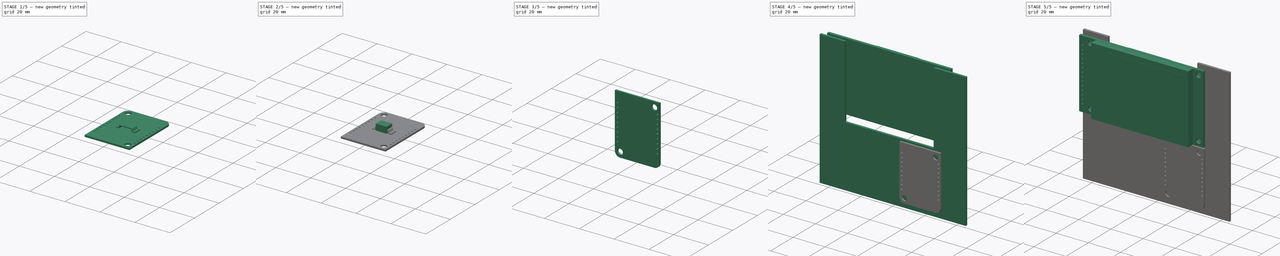
[diagram: build sequence overview — one tinted view per stage of 5, left to right]
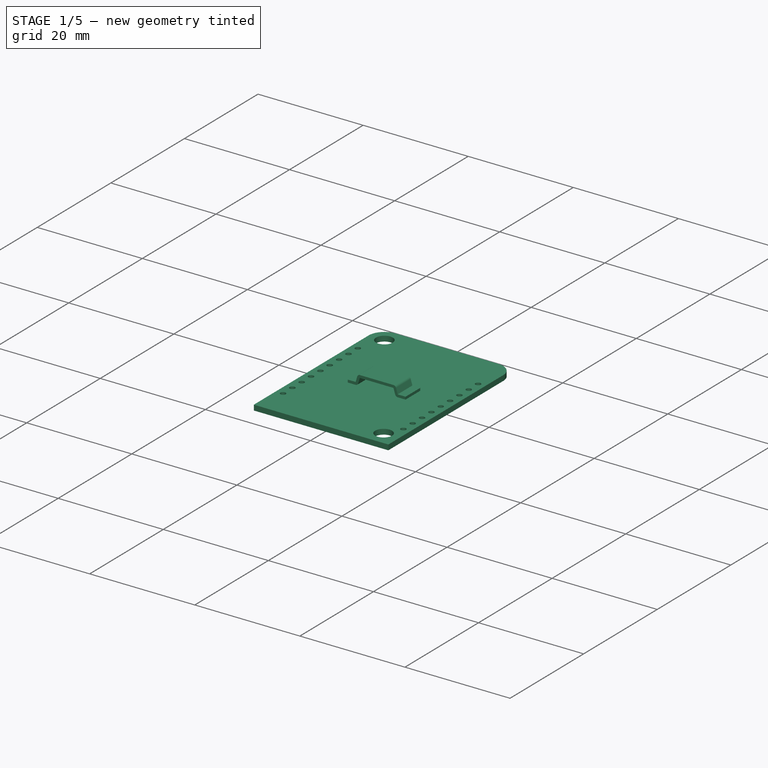
[diagram: stage 1 of 5 — iso view after this stage's code; geometry added in this stage tinted green]
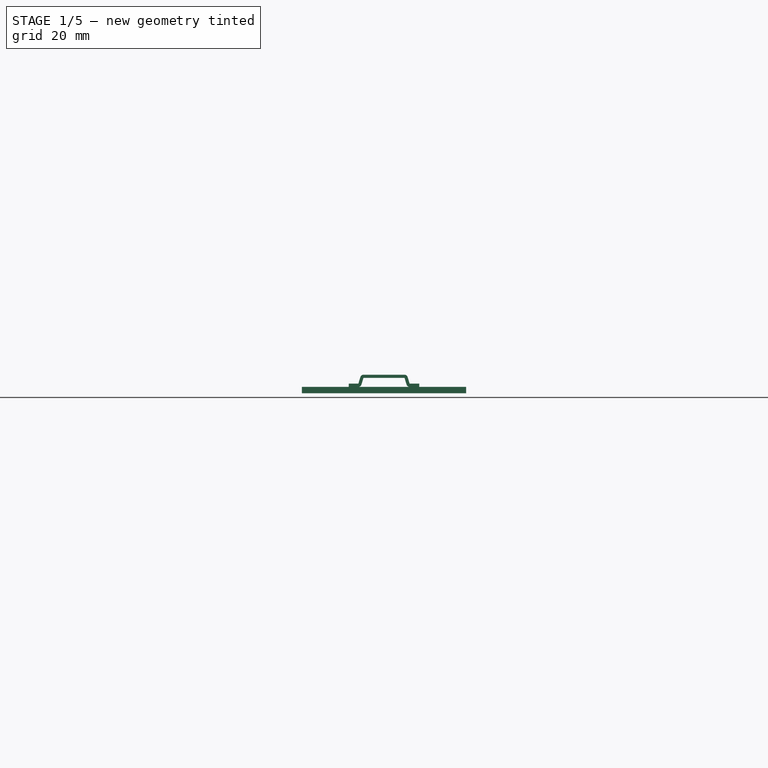
[diagram: stage 1 of 5 — front view after this stage's code; geometry added in this stage tinted green]
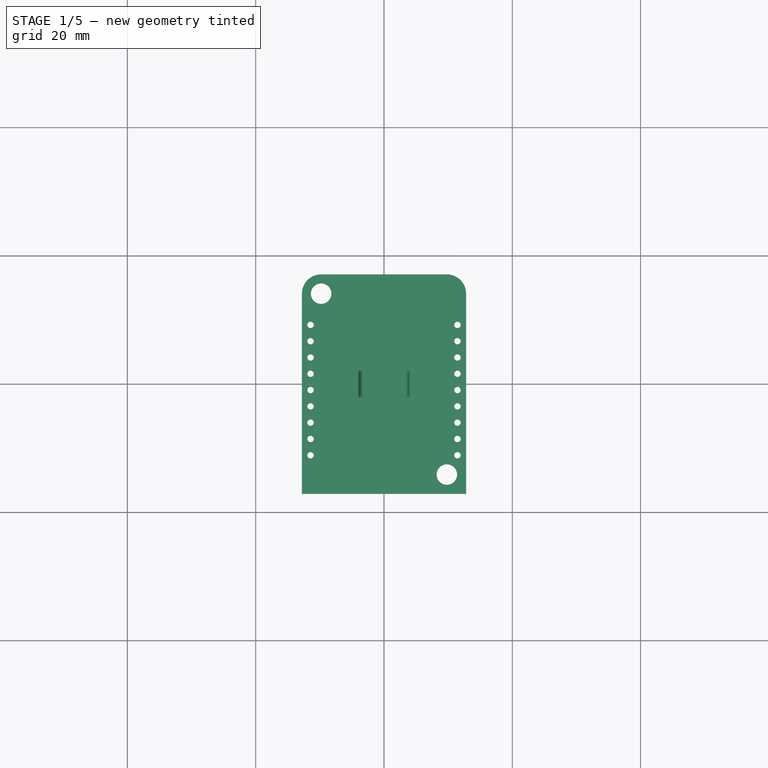
[diagram: stage 1 of 5 — top view after this stage's code; geometry added in this stage tinted green]
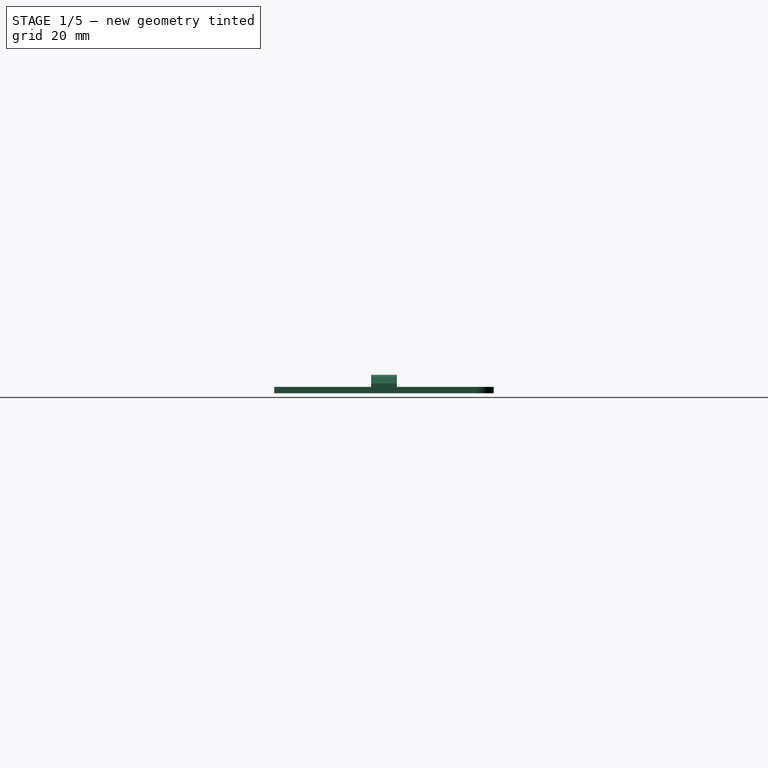
[diagram: stage 1 of 5 — right view after this stage's code; geometry added in this stage tinted green]
FCSTD DOCUMENT  (FreeCAD 0.20R29410 (Git))
Label: RoomThermostat with PCB and rotary encoder (concept)
License: All rights reserved
LicenseURL: http://en.wikipedia.org/wiki/All_rights_reserved
objects: Sketcher::SketchObject×18, PartDesign::Pad×11, PartDesign::Body×10, Part::Feature×6, PartDesign::Mirrored×5, PartDesign::Pocket×4, PartDesign::LinearPattern×2, Part::Compound×2, App::Part×1, PartDesign::MultiTransform×1
note: 74 computed .brp shape members not serialized (recipe doc carries the construction recipe); baked Part::Feature solids carry a one-line shape summary decoded from their .brp

FEATURE [PartDesign::Body] Body004
  Group = -> [Sketch011,Pad005]
  Origin = -> Origin006
  Tip = -> Pad005
FEATURE [Part::Feature] Part__Feature007  label="MH-ET_LIVE_MiniKit"
  Placement = pos=(-15.8,-5.5,-42) rot=(0,0,1;0rad)
  shape: bbox 31.02 x 99.68 x 39.44 mm, 5494 faces, 23 solids (baked)
FEATURE [Sketcher::SketchObject] Sketch012  label="Sketch"
  FullyConstrained = true
  MapMode = 5
  Support = -> [XY_Plane007]
  sketch-geometry (13):
    g0: LineSegment StartX=9.8 StartY=17.1 StartZ=0 EndX=-9.8 EndY=17.1 EndZ=0
    g1: LineSegment StartX=-12.8 StartY=14.1 StartZ=0 EndX=-12.8 EndY=-17.1 EndZ=0
    g2: LineSegment StartX=-12.8 StartY=-17.1 StartZ=0 EndX=12.8 EndY=-17.1 EndZ=0
    g3: LineSegment StartX=12.8 StartY=-17.1 StartZ=0 EndX=12.8 EndY=14.1 EndZ=0
    g4: GeomPoint X=12.8 Y=17.1 Z=0
    g5: ArcOfCircle CenterX=9.8 CenterY=14.1 CenterZ=0 NormalX=0 NormalY=0 NormalZ=1 AngleXU=0 Radius=3 StartAngle=0 EndAngle=1.5708
    g6: ArcOfCircle CenterX=-9.8 CenterY=14.1 CenterZ=0 NormalX=0 NormalY=0 NormalZ=1 AngleXU=0 Radius=3 StartAngle=1.5708 EndAngle=3.14159
    g7: Circle CenterX=-9.8 CenterY=14.1 CenterZ=0 NormalX=0 NormalY=0 NormalZ=1 AngleXU=0 Radius=1.6
    g8: Circle CenterX=9.8 CenterY=-14.1 CenterZ=0 NormalX=0 NormalY=0 NormalZ=1 AngleXU=0 Radius=1.6
    g9: LineSegment StartX=-9.8 StartY=14.1 StartZ=0 EndX=9.8 EndY=14.1 EndZ=0
    g10: LineSegment StartX=9.8 StartY=14.1 StartZ=0 EndX=9.8 EndY=-14.1 EndZ=0
    g11: LineSegment StartX=9.8 StartY=-14.1 StartZ=0 EndX=-9.8 EndY=-14.1 EndZ=0
    g12: LineSegment StartX=-9.8 StartY=-14.1 StartZ=0 EndX=-9.8 EndY=14.1 EndZ=0
  constraints (29):
    c: Vertical(g1)
    c: Symmetric(g1,g3,g-2)
    c: PointOnObject(g4,g0)
    c: Symmetric(g4,g2,g-1)
    c: Symmetric(g2,g2,g-2)
    c: Tangent(g3,g5) = -1.5708
    c: Tangent(g0,g5) = -1.5708
    c: Tangent(g0,g6) = -1.5708
    c: Tangent(g1,g6) = -1.5708
    c: Symmetric(g5,g6,g-2)
    c: Coincident(g1,g2)
    c: DistanceY(g2,g0) = 34.2
    c: Vertical(g3)
    c: DistanceX(g1,g3) = 25.6
    c: Radius(g5) = 3
    c: Coincident(g7,g6)
    c: Diameter(g7) = 3.2
    c: Coincident(g9,g10)
    c: Coincident(g10,g11)
    c: Coincident(g11,g12)
    c: Coincident(g12,g9)
    c: Horizontal(g11)
    c: Vertical(g12)
    c: Coincident(g9,g6)
    c: Coincident(g10,g8)
    c: Symmetric(g6,g9,g-2)
    c: Symmetric(g5,g8,g-1)
    c: Equal(g8,g7)
    c: DistanceY(g1,g-1) = 17.1
FEATURE [PartDesign::Pad] Pad006  label="Pad"
  Direction = (1,1,1)
  Length = 1
  Length2 = 100
  Profile = -> Sketch012
  Reversed = true
  Type = 0
FEATURE [PartDesign::Body] Body008  label="BodyDevice002"
  Group = -> [Sketch016,Pad011]
  Origin = -> Origin011
  Placement = pos=(0,29.75,0) rot=(0,0,1;0rad)
  Tip = -> Pad011
FEATURE [Sketcher::SketchObject] Sketch017  label="Sketch013"
  FullyConstrained = false
  MapMode = 5
  Support = -> [XY_Plane010]
  sketch-geometry (4):
    g0: LineSegment StartX=6 StartY=0.9 StartZ=0 EndX=1 EndY=0.9 EndZ=0
    g1: LineSegment StartX=1 StartY=0.9 StartZ=0 EndX=1 EndY=-0.9 EndZ=0
    g2: LineSegment StartX=1 StartY=-0.9 StartZ=0 EndX=6 EndY=-0.9 EndZ=0
    g3: LineSegment StartX=6 StartY=-0.9 StartZ=0 EndX=6 EndY=0.9 EndZ=0
  constraints (11):
    c: Coincident(g0,g1)
    c: Coincident(g1,g2)
    c: Coincident(g2,g3)
    c: Coincident(g3,g0)
    c: Horizontal(g0)
    c: Horizontal(g2)
    c: Vertical(g1)
    c: Symmetric(g0,g2,g-1)
    c: DistanceY(g3,g3) = 1.8
    c: DistanceX(g0) = 6
    c: DistanceX(g0) = 1
FEATURE [Sketcher::SketchObject] Sketch018  label="Sketch014"
  FullyConstrained = false
  MapMode = 5
  Placement = pos=(0,0,0) rot=(1,0,0;1.5708rad)
  Support = -> [XZ_Plane011]
  sketch-geometry (10):
    g0: LineSegment StartX=0 StartY=1.9 StartZ=0 EndX=3.2 EndY=1.9 EndZ=0
    g1: LineSegment StartX=3.2 StartY=1.4 StartZ=0 EndX=0 EndY=1.4 EndZ=0
    g2: LineSegment StartX=0 StartY=1.4 StartZ=0 EndX=0 EndY=1.9 EndZ=0
    g3: LineSegment StartX=4 StartY=0.5 StartZ=0 EndX=5.5 EndY=0.5 EndZ=0
    g4: LineSegment StartX=5.5 StartY=0.5 StartZ=0 EndX=5.5 EndY=0 EndZ=0
    g5: LineSegment StartX=5.5 StartY=0 StartZ=0 EndX=4 EndY=0 EndZ=0
    g6: LineSegment StartX=3.2 StartY=1.4 StartZ=0 EndX=3.5221 EndY=0.352981 EndZ=0
    g7: LineSegment StartX=4 StartY=0.5 StartZ=0 EndX=3.6779 EndY=1.54702 EndZ=0
    g8: ArcOfCircle CenterX=3.2 CenterY=1.4 CenterZ=0 NormalX=0 NormalY=0 NormalZ=1 AngleXU=0 Radius=0.5 StartAngle=0.29845 EndAngle=1.5708
    g9: ArcOfCircle CenterX=4 CenterY=0.5 CenterZ=0 NormalX=0 NormalY=0 NormalZ=1 AngleXU=0 Radius=0.5 StartAngle=3.44004 EndAngle=4.71239
  constraints (26):
    c: Coincident(g1,g2)
    c: Coincident(g2,g0)
    c: Horizontal(g0)
    c: Horizontal(g1)
    c: Vertical(g2)
    c: PointOnObject(g0,g-2)
    c: Coincident(g3,g4)
    c: Coincident(g4,g5)
    c: Horizontal(g3)
    c: Horizontal(g5)
    c: Vertical(g4)
    c: PointOnObject(g4,g-1)
    c: Tangent(g0,g8) = 1.5708
    c: Tangent(g7,g8) = -1.5708
    c: Tangent(g6,g9) = -1.5708
    c: Tangent(g5,g9) = 1.5708
    c: Coincident(g3,g7)
    c: Coincident(g3,g9)
    c: Coincident(g1,g6)
    c: Coincident(g1,g8)
    c: Parallel(g6,g7)
    c: DistanceX(g3) = 5.5
    c: DistanceY(g4,g4) = 0.5
    c: DistanceX(g1) = 3.2
    c: DistanceY(g1) = 1.4
    c: DistanceX(g1,g3) = 0.8
FEATURE [PartDesign::Pad] Pad010
  Direction = (1,1,1)
  Length = 4
  Length2 = 100
  Midplane = true
  Placement = pos=(0,0,0) rot=(1,0,0;1.5708rad)
  Profile = -> Sketch018
  Type = 0
FEATURE [PartDesign::Mirrored] Mirrored002
  BaseFeature = -> Pad010
  MirrorPlane = -> YZ_Plane011
  Originals = -> [Pad010]
  Placement = pos=(0,0,0) rot=(1,0,0;1.5708rad)
FEATURE [PartDesign::Body] Body009  label="PinsDevice002"
  Group = -> [Sketch018,Pad010,Mirrored002,Sketch017,Pocket002,Mirrored003]
  Origin = -> Origin010
  Placement = pos=(0,29.75,0) rot=(0,0,1;0rad)
  Tip = -> Mirrored003
FEATURE [Sketcher::SketchObject] Sketch019
  FullyConstrained = false
  MapMode = 5
  Support = -> [XY_Plane007]
  sketch-geometry (1):
    g0: Circle CenterX=11.45 CenterY=-11.09 CenterZ=0 NormalX=0 NormalY=0 NormalZ=1 AngleXU=0 Radius=0.5
  constraints (3):
    c: DistanceX(g-1,g0) = 11.45
    c: DistanceY(g0,g-1) = 11.09
    c: Diameter(g0) = 1
FEATURE [PartDesign::Pocket] Pocket003  label="Pocket002"
  BaseFeature = -> Pad006
  Direction = (1,1,1)
  Length = 5
  Length2 = 100
  Midplane = true
  Profile = -> Sketch019
  Type = 1
FEATURE [PartDesign::LinearPattern] LinearPattern001  label="LinearPattern"
  Direction = -> Y_Axis007
  Length = 20.32
  Occurrences = 9
FEATURE [PartDesign::Mirrored] Mirrored004
  MirrorPlane = -> YZ_Plane007
FEATURE [PartDesign::MultiTransform] MultiTransform
  BaseFeature = -> Pocket003
  Originals = -> [Pocket003]
  Transformations = -> [LinearPattern001,Mirrored004]
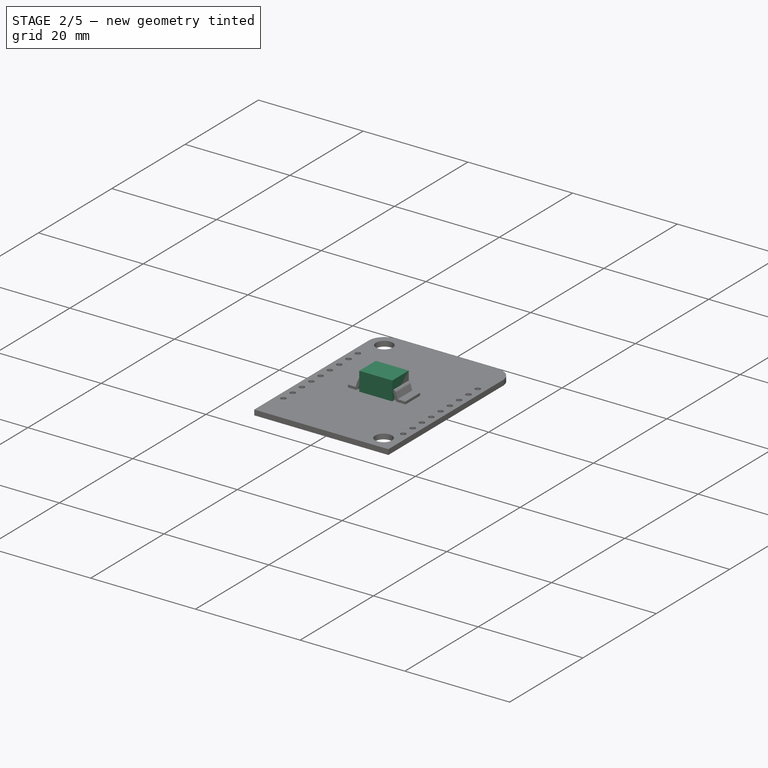
[diagram: stage 2 of 5 — iso view after this stage's code; geometry added in this stage tinted green]
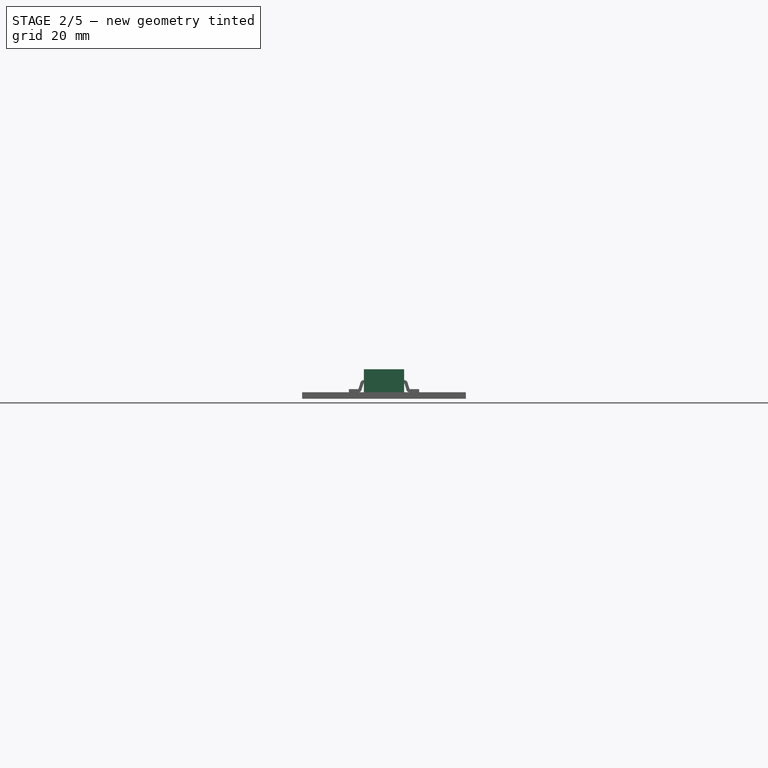
[diagram: stage 2 of 5 — front view after this stage's code; geometry added in this stage tinted green]
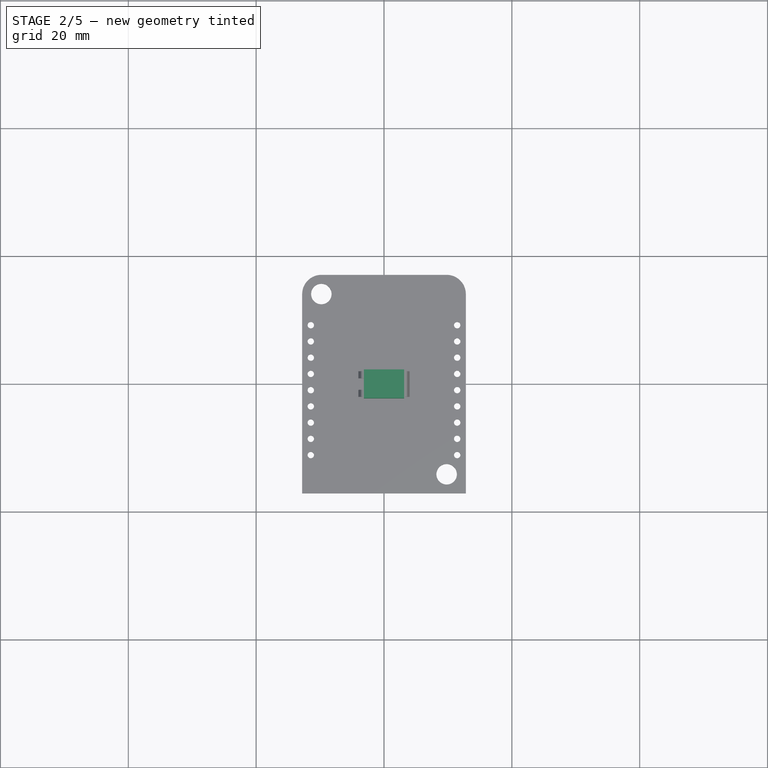
[diagram: stage 2 of 5 — top view after this stage's code; geometry added in this stage tinted green]
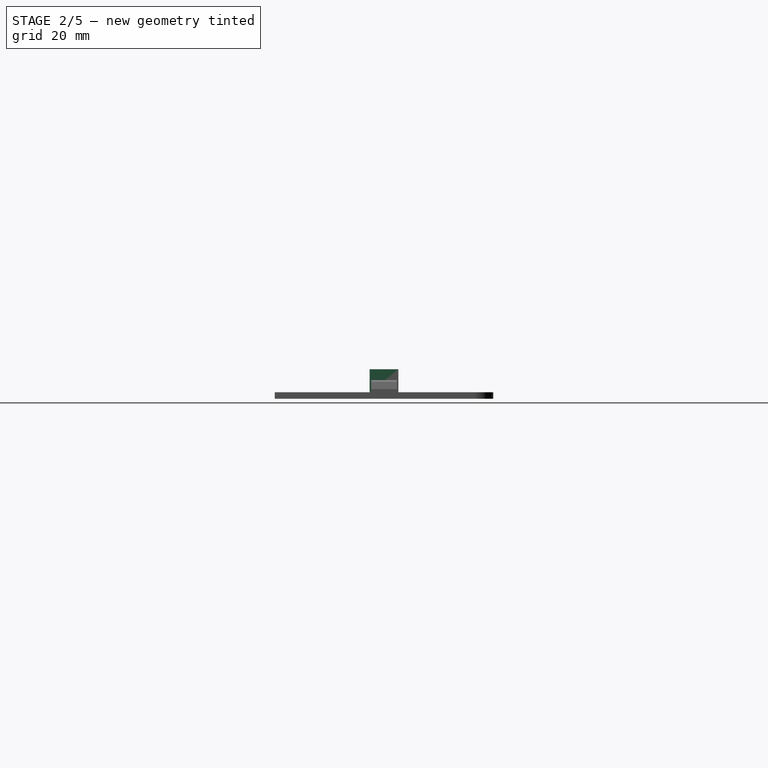
[diagram: stage 2 of 5 — right view after this stage's code; geometry added in this stage tinted green]
FEATURE [PartDesign::Body] Body006  label="BodyDevice1"
  Group = -> [Sketch013,Pad007]
  Origin = -> Origin008
  Placement = pos=(0,14.75,0) rot=(0,0,1;0rad)
  Tip = -> Pad007
FEATURE [Sketcher::SketchObject] Sketch014  label="Sketch010"
  FullyConstrained = false
  MapMode = 5
  Placement = pos=(0,0,0) rot=(1,0,0;1.5708rad)
  Support = -> [XZ_Plane009]
  sketch-geometry (10):
    g0: LineSegment StartX=0 StartY=1.9 StartZ=0 EndX=3.2 EndY=1.9 EndZ=0
    g1: LineSegment StartX=3.2 StartY=1.4 StartZ=0 EndX=0 EndY=1.4 EndZ=0
    g2: LineSegment StartX=0 StartY=1.4 StartZ=0 EndX=0 EndY=1.9 EndZ=0
    g3: LineSegment StartX=4 StartY=0.5 StartZ=0 EndX=5.5 EndY=0.5 EndZ=0
    g4: LineSegment StartX=5.5 StartY=0.5 StartZ=0 EndX=5.5 EndY=0 EndZ=0
    g5: LineSegment StartX=5.5 StartY=0 StartZ=0 EndX=4 EndY=0 EndZ=0
    g6: LineSegment StartX=3.2 StartY=1.4 StartZ=0 EndX=3.5221 EndY=0.352981 EndZ=0
    g7: LineSegment StartX=4 StartY=0.5 StartZ=0 EndX=3.6779 EndY=1.54702 EndZ=0
    g8: ArcOfCircle CenterX=3.2 CenterY=1.4 CenterZ=0 NormalX=0 NormalY=0 NormalZ=1 AngleXU=0 Radius=0.5 StartAngle=0.29845 EndAngle=1.5708
    g9: ArcOfCircle CenterX=4 CenterY=0.5 CenterZ=0 NormalX=0 NormalY=0 NormalZ=1 AngleXU=0 Radius=0.5 StartAngle=3.44004 EndAngle=4.71239
  constraints (26):
    c: Coincident(g1,g2)
    c: Coincident(g2,g0)
    c: Horizontal(g0)
    c: Horizontal(g1)
    c: Vertical(g2)
    c: PointOnObject(g0,g-2)
    c: Coincident(g3,g4)
    c: Coincident(g4,g5)
    c: Horizontal(g3)
    c: Horizontal(g5)
    c: Vertical(g4)
    c: PointOnObject(g4,g-1)
    c: Tangent(g0,g8) = 1.5708
    c: Tangent(g7,g8) = -1.5708
    c: Tangent(g6,g9) = -1.5708
    c: Tangent(g5,g9) = 1.5708
    c: Coincident(g3,g7)
    c: Coincident(g3,g9)
    c: Coincident(g1,g6)
    c: Coincident(g1,g8)
    c: Parallel(g6,g7)
    c: DistanceX(g3) = 5.5
    c: DistanceY(g4,g4) = 0.5
    c: DistanceX(g1) = 3.2
    c: DistanceY(g1) = 1.4
    c: DistanceX(g1,g3) = 0.8
FEATURE [PartDesign::Pad] Pad009
  Direction = (1,1,1)
  Length = 4
  Length2 = 100
  Midplane = true
  Placement = pos=(0,0,0) rot=(1,0,0;1.5708rad)
  Profile = -> Sketch014
  Type = 0
FEATURE [PartDesign::Body] Body007  label="PinsDevice1"
  Group = -> [Sketch014,Pad009,Mirrored,Sketch015,Pocket001,Mirrored001]
  Origin = -> Origin009
  Placement = pos=(0,14.75,0) rot=(0,0,1;0rad)
  Tip = -> Mirrored001
FEATURE [Sketcher::SketchObject] Sketch016  label="Sketch012"
  FullyConstrained = false
  MapMode = 5
  Placement = pos=(0,0,0) rot=(0.57735,0.57735,0.57735;2.0944rad)
  Support = -> [YZ_Plane010]
  sketch-geometry (4):
    g0: LineSegment StartX=-2.25 StartY=3.6 StartZ=0 EndX=2.25 EndY=3.6 EndZ=0
    g1: LineSegment StartX=2.25 StartY=3.6 StartZ=0 EndX=2.25 EndY=0 EndZ=0
    g2: LineSegment StartX=2.25 StartY=0 StartZ=0 EndX=-2.25 EndY=0 EndZ=0
    g3: LineSegment StartX=-2.25 StartY=0 StartZ=0 EndX=-2.25 EndY=3.6 EndZ=0
  constraints (11):
    c: Coincident(g0,g1)
    c: Coincident(g1,g2)
    c: Coincident(g2,g3)
    c: Coincident(g3,g0)
    c: Horizontal(g2)
    c: Vertical(g1)
    c: Vertical(g3)
    c: DistanceX(g0,g0) = 4.5
    c: DistanceY(g1,g1) = 3.6
    c: PointOnObject(g1,g-1)
    c: Symmetric(g0,g0,g-2)
FEATURE [PartDesign::Pad] Pad011
  Direction = (1,1,1)
  Length = 6.3
  Length2 = 100
  Midplane = true
  Placement = pos=(0,0,0) rot=(0.57735,0.57735,0.57735;2.0944rad)
  Profile = -> Sketch016
  Type = 0
FEATURE [PartDesign::Pocket] Pocket002  label="Pocket001"
  BaseFeature = -> Mirrored002
  Direction = (1,1,1)
  Length = 5
  Length2 = 100
  Midplane = true
  Placement = pos=(0,0,0) rot=(1,0,0;1.5708rad)
  Profile = -> Sketch017
  Type = 1
FEATURE [PartDesign::Mirrored] Mirrored003
  BaseFeature = -> Pocket002
  MirrorPlane = -> YZ_Plane011
  Originals = -> [Pocket002]
  Placement = pos=(0,0,0) rot=(1,0,0;1.5708rad)
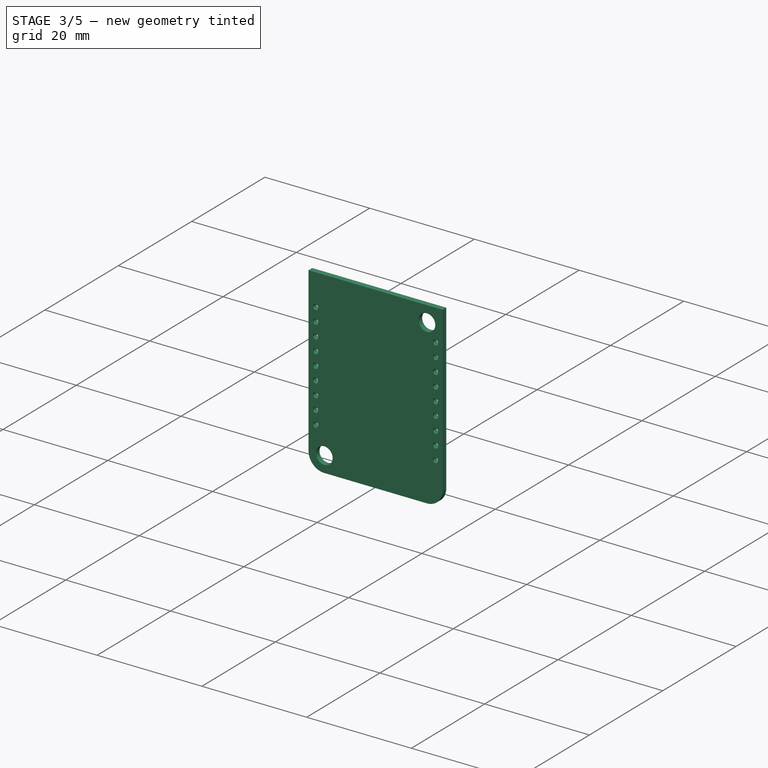
[diagram: stage 3 of 5 — iso view after this stage's code; geometry added in this stage tinted green]
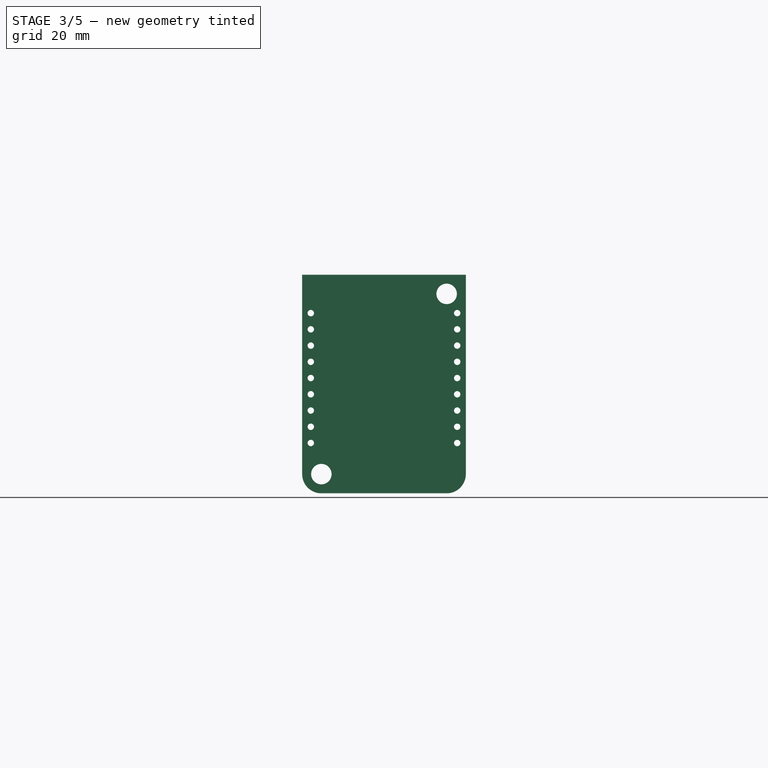
[diagram: stage 3 of 5 — front view after this stage's code; geometry added in this stage tinted green]
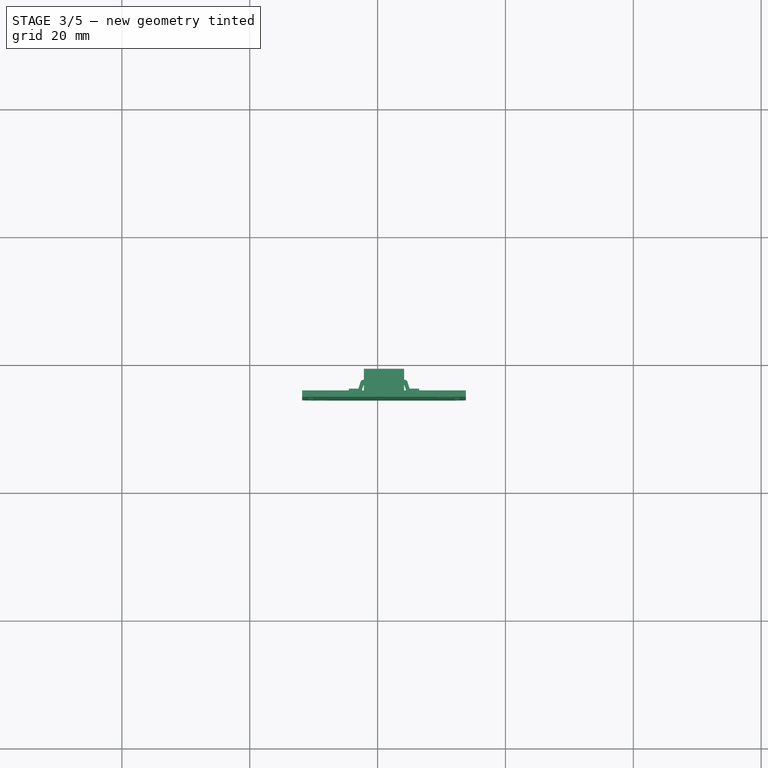
[diagram: stage 3 of 5 — top view after this stage's code; geometry added in this stage tinted green]
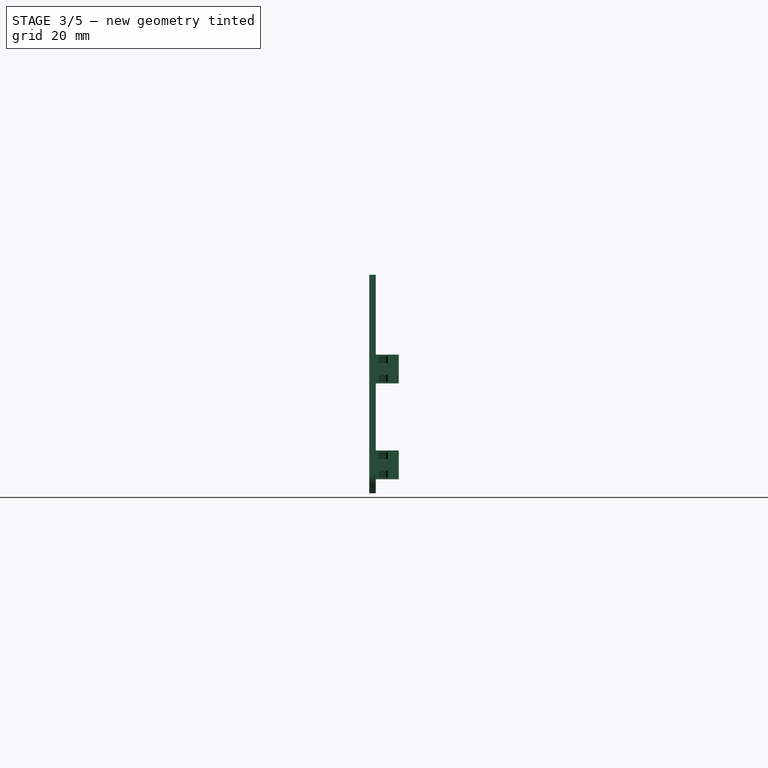
[diagram: stage 3 of 5 — right view after this stage's code; geometry added in this stage tinted green]
FEATURE [Sketcher::SketchObject] Sketch013  label="Sketch001"
  FullyConstrained = false
  MapMode = 5
  Placement = pos=(0,0,0) rot=(0.57735,0.57735,0.57735;2.0944rad)
  Support = -> [YZ_Plane008]
  sketch-geometry (4):
    g0: LineSegment StartX=-2.25 StartY=3.6 StartZ=0 EndX=2.25 EndY=3.6 EndZ=0
    g1: LineSegment StartX=2.25 StartY=3.6 StartZ=0 EndX=2.25 EndY=0 EndZ=0
    g2: LineSegment StartX=2.25 StartY=0 StartZ=0 EndX=-2.25 EndY=0 EndZ=0
    g3: LineSegment StartX=-2.25 StartY=0 StartZ=0 EndX=-2.25 EndY=3.6 EndZ=0
  constraints (11):
    c: Coincident(g0,g1)
    c: Coincident(g1,g2)
    c: Coincident(g2,g3)
    c: Coincident(g3,g0)
    c: Horizontal(g2)
    c: Vertical(g1)
    c: Vertical(g3)
    c: DistanceX(g0,g0) = 4.5
    c: DistanceY(g1,g1) = 3.6
    c: PointOnObject(g1,g-1)
    c: Symmetric(g0,g0,g-2)
FEATURE [PartDesign::Pad] Pad007  label="Pad001"
  Direction = (1,1,1)
  Length = 6.3
  Length2 = 100
  Midplane = true
  Placement = pos=(0,0,0) rot=(0.57735,0.57735,0.57735;2.0944rad)
  Profile = -> Sketch013
  Type = 0
FEATURE [PartDesign::Mirrored] Mirrored
  BaseFeature = -> Pad009
  MirrorPlane = -> YZ_Plane009
  Originals = -> [Pad009]
  Placement = pos=(0,0,0) rot=(1,0,0;1.5708rad)
FEATURE [Sketcher::SketchObject] Sketch015
  FullyConstrained = false
  MapMode = 5
  Support = -> [XY_Plane009]
  sketch-geometry (4):
    g0: LineSegment StartX=6 StartY=0.9 StartZ=0 EndX=1 EndY=0.9 EndZ=0
    g1: LineSegment StartX=1 StartY=0.9 StartZ=0 EndX=1 EndY=-0.9 EndZ=0
    g2: LineSegment StartX=1 StartY=-0.9 StartZ=0 EndX=6 EndY=-0.9 EndZ=0
    g3: LineSegment StartX=6 StartY=-0.9 StartZ=0 EndX=6 EndY=0.9 EndZ=0
  constraints (11):
    c: Coincident(g0,g1)
    c: Coincident(g1,g2)
    c: Coincident(g2,g3)
    c: Coincident(g3,g0)
    c: Horizontal(g0)
    c: Horizontal(g2)
    c: Vertical(g1)
    c: Symmetric(g0,g2,g-1)
    c: DistanceY(g3,g3) = 1.8
    c: DistanceX(g0) = 6
    c: DistanceX(g0) = 1
FEATURE [PartDesign::Pocket] Pocket001  label="Pocket"
  BaseFeature = -> Mirrored
  Direction = (1,1,1)
  Length = 5
  Length2 = 100
  Midplane = true
  Placement = pos=(0,0,0) rot=(1,0,0;1.5708rad)
  Profile = -> Sketch015
  Type = 1
FEATURE [PartDesign::Mirrored] Mirrored001
  BaseFeature = -> Pocket001
  MirrorPlane = -> YZ_Plane009
  Originals = -> [Pocket001]
  Placement = pos=(0,0,0) rot=(1,0,0;1.5708rad)
FEATURE [PartDesign::Body] Body005  label="PCB001"
  Group = -> [Sketch012,Pad006,Sketch019,Pocket003,MultiTransform,LinearPattern001,Mirrored004]
  Origin = -> Origin007
  Placement = pos=(0,17.1,0) rot=(0,0,1;0rad)
  Tip = -> MultiTransform
FEATURE [Part::Compound] Compound001  label="OpenThermAdaptor"
  Links = -> [Body005,Body006,Body007,Body008,Body009]
  Placement = pos=(21,-4.5,-22.2) rot=(-1,0,0;1.5708rad)
FEATURE [Part::Feature] Part__Feature008  label="Phonix2Pins001"
  Placement = pos=(2.53914,39.9011,-15.51) rot=(0.57735,0.57735,0.57735;2.0944rad)
  shape: bbox 10.73 x 8.1 x 13.5 mm, 169 faces (baked)
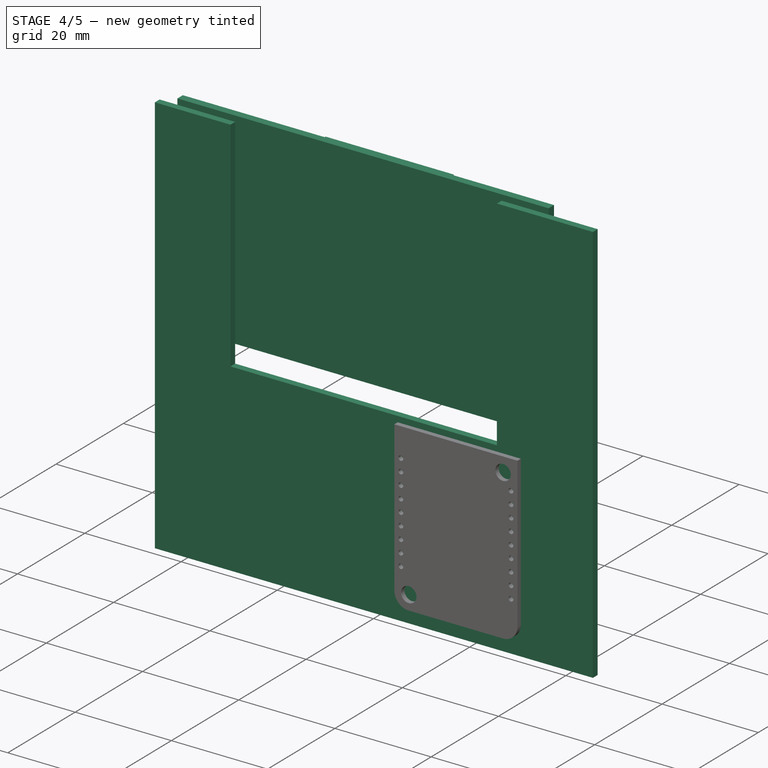
[diagram: stage 4 of 5 — iso view after this stage's code; geometry added in this stage tinted green]
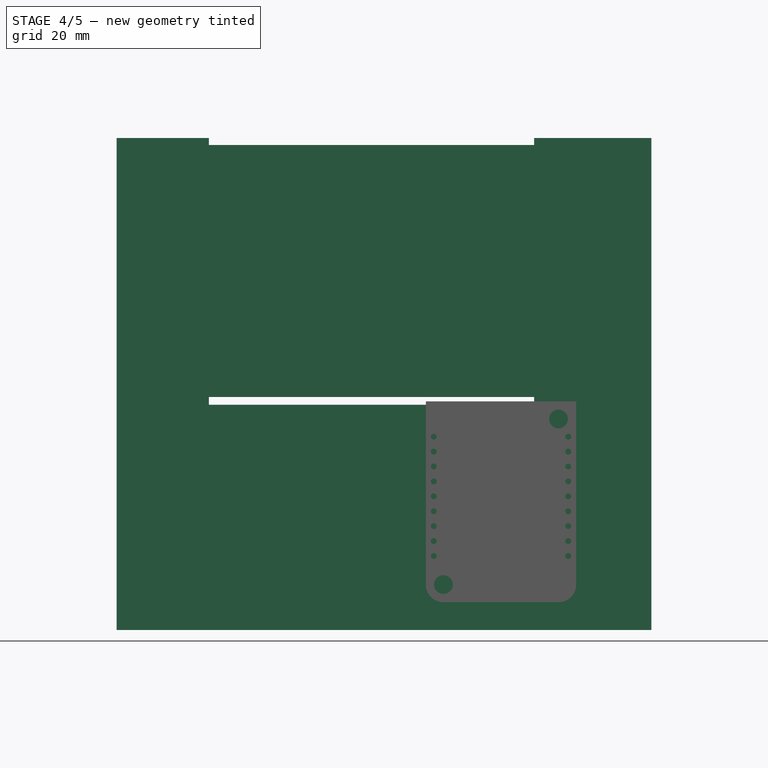
[diagram: stage 4 of 5 — front view after this stage's code; geometry added in this stage tinted green]
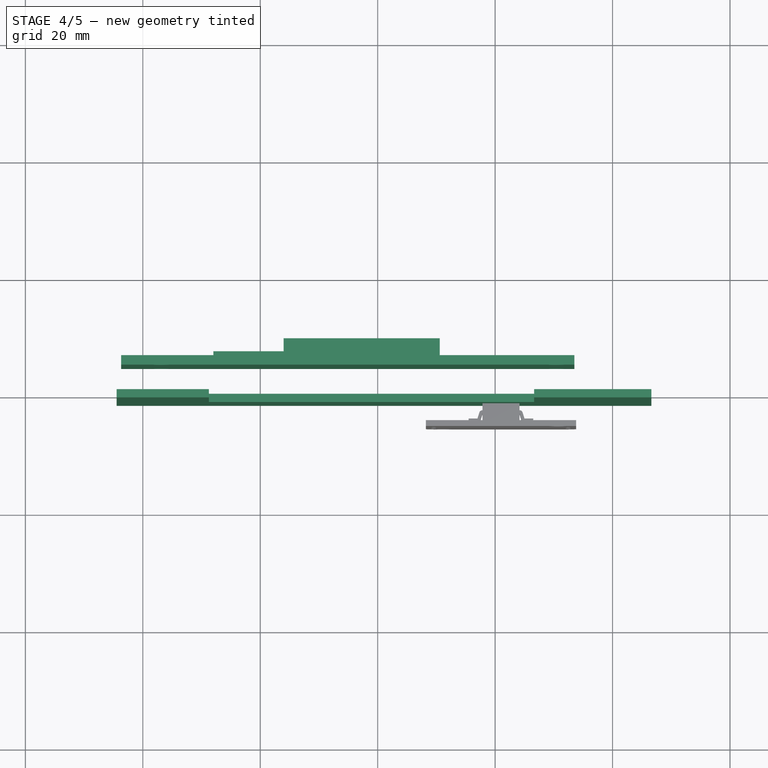
[diagram: stage 4 of 5 — top view after this stage's code; geometry added in this stage tinted green]
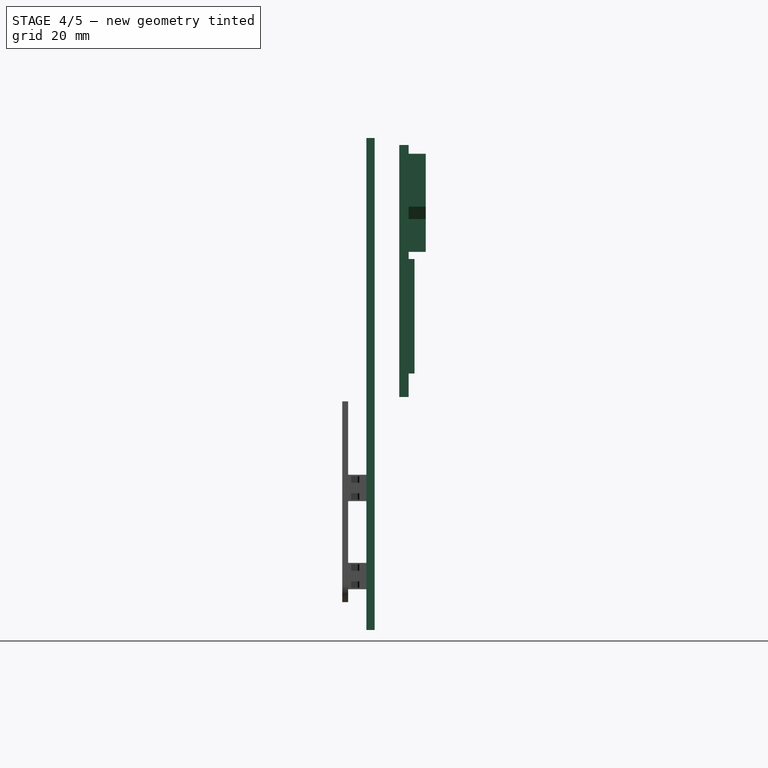
[diagram: stage 4 of 5 — right view after this stage's code; geometry added in this stage tinted green]
FEATURE [PartDesign::Body] Body  label="Glass"
  Group = -> [Sketch,Pad,Sketch001,Pad001]
  Origin = -> Origin
  Tip = -> Pad001
FEATURE [Sketcher::SketchObject] Sketch003  label="pc skeleton"
  FullyConstrained = true
  MapMode = 5
  Placement = pos=(0,0,0) rot=(1,0,0;1.5708rad)
  Support = -> [XZ_Plane001]
  sketch-geometry (8):
    g0: LineSegment StartX=-33.28 StartY=21.36 StartZ=0 EndX=26.98 EndY=21.36 EndZ=0
    g1: LineSegment StartX=26.98 StartY=21.36 StartZ=0 EndX=26.98 EndY=-21.36 EndZ=0
    g2: LineSegment StartX=26.98 StartY=-21.36 StartZ=0 EndX=-33.28 EndY=-21.36 EndZ=0
    g3: LineSegment StartX=-33.28 StartY=-21.36 StartZ=0 EndX=-33.28 EndY=21.36 EndZ=0
    g4: LineSegment StartX=-24.48 StartY=18.36 StartZ=0 EndX=24.48 EndY=18.36 EndZ=0
    g5: LineSegment StartX=24.48 StartY=18.36 StartZ=0 EndX=24.48 EndY=-18.36 EndZ=0
    g6: LineSegment StartX=24.48 StartY=-18.36 StartZ=0 EndX=-24.48 EndY=-18.36 EndZ=0
    g7: LineSegment StartX=-24.48 StartY=-18.36 StartZ=0 EndX=-24.48 EndY=18.36 EndZ=0
  constraints (21):
    c: Coincident(g0,g1)
    c: Coincident(g1,g2)
    c: Coincident(g2,g3)
    c: Coincident(g3,g0)
    c: Horizontal(g2)
    c: Vertical(g3)
    c: DistanceX(g0,g0) = 60.26
    c: DistanceY(g1,g1) = 42.72
    c: Coincident(g4,g5)
    c: Coincident(g5,g6)
    c: Coincident(g6,g7)
    c: Coincident(g7,g4)
    c: Horizontal(g6)
    c: Vertical(g7)
    c: Horizontal(g0)
    c: Symmetric(g4,g4,g-2)
    c: Symmetric(g4,g5,g-1)
    c: DistanceX(g4,g4) = 48.96
    c: DistanceX(g4,g0) = 2.5
    c: DistanceY(g5,g5) = 36.72
    c: Symmetric(g0,g1,g-1)
FEATURE [Sketcher::SketchObject] Sketch002  label="pc base"
  AttachmentOffset = pos=(0,0,-4.2) rot=(0,0,1;0rad)
  ExternalGeometry = -> [Sketch003]
  FullyConstrained = true
  MapMode = 5
  Placement = pos=(0,4.2,9e-16) rot=(1,0,0;1.5708rad)
  Support = -> [XZ_Plane001]
  sketch-geometry (12):
    g0: LineSegment StartX=33.49 StartY=21.45 StartZ=0 EndX=-43.69 EndY=21.45 EndZ=0
    g1: LineSegment StartX=-43.69 StartY=21.45 StartZ=0 EndX=-43.69 EndY=-21.45 EndZ=0
    g2: LineSegment StartX=-43.69 StartY=-21.45 StartZ=0 EndX=33.49 EndY=-21.45 EndZ=0
    g3: LineSegment StartX=33.49 StartY=-21.45 StartZ=0 EndX=33.49 EndY=21.45 EndZ=0
    g4: LineSegment StartX=-36.77 StartY=18.45 StartZ=0 EndX=30.49 EndY=18.45 EndZ=0
    g5: LineSegment StartX=30.49 StartY=18.45 StartZ=0 EndX=30.49 EndY=-18.45 EndZ=0
    g6: LineSegment StartX=30.49 StartY=-18.45 StartZ=0 EndX=-36.77 EndY=-18.45 EndZ=0
    g7: LineSegment StartX=-36.77 StartY=-18.45 StartZ=0 EndX=-36.77 EndY=18.45 EndZ=0
    g8: Circle CenterX=30.49 CenterY=18.45 CenterZ=0 NormalX=0 NormalY=0 NormalZ=1 AngleXU=0 Radius=1.5
    g9: Circle CenterX=30.49 CenterY=-18.45 CenterZ=0 NormalX=0 NormalY=0 NormalZ=1 AngleXU=0 Radius=1.5
    g10: Circle CenterX=-36.77 CenterY=-18.45 CenterZ=0 NormalX=0 NormalY=0 NormalZ=1 AngleXU=0 Radius=1.5
    g11: Circle CenterX=-36.77 CenterY=18.45 CenterZ=0 NormalX=0 NormalY=0 NormalZ=1 AngleXU=0 Radius=1.5
  constraints (30):
    c: Coincident(g0,g1)
    c: Coincident(g1,g2)
    c: Coincident(g2,g3)
    c: Coincident(g3,g0)
    c: Horizontal(g0)
    c: Horizontal(g2)
    c: Vertical(g1)
    c: Symmetric(g0,g2,g-1)
    c: DistanceX(g0,g-3) = 10.41
    c: DistanceX(g0,g0) = 77.18
    c: DistanceY(g3,g3) = 42.9
    c: Coincident(g4,g5)
    c: Coincident(g5,g6)
    c: Coincident(g6,g7)
    c: Coincident(g7,g4)
    c: Horizontal(g4)
    c: Horizontal(g6)
    c: Vertical(g7)
    c: Symmetric(g4,g5,g-1)
    c: Coincident(g8,g4)
    c: Coincident(g9,g5)
    c: Coincident(g10,g6)
    c: Coincident(g11,g4)
    c: Equal(g8,g11)
    c: Equal(g11,g10)
    c: Equal(g10,g9)
    c: Radius(g9) = 1.5
    c: DistanceX(g0,g11) = 6.92
    c: DistanceX(g8,g0) = 3
    c: DistanceY(g8,g0) = 3
FEATURE [PartDesign::Pad] Pad002  label="PC base"
  Direction = (1,1,1)
  Length = 1.6
  Length2 = 100
  Placement = pos=(0,0,0) rot=(1,0,0;1.5708rad)
  Profile = -> Sketch002
  Reversed = true
  Type = 0
FEATURE [PartDesign::Body] Body001  label="PCB"
  Group = -> [Sketch002,Sketch003,Pad002,Sketch004,Pocket,LinearPattern]
  Origin = -> Origin001
  Tip = -> LinearPattern
FEATURE [Sketcher::SketchObject] Sketch006  label="sd skeleton"
  FullyConstrained = true
  MapMode = 5
  Placement = pos=(0,0,0) rot=(1,0,0;1.5708rad)
  Support = -> [XZ_Plane002]
  sketch-geometry (8):
    g0: LineSegment StartX=-33.28 StartY=21.36 StartZ=0 EndX=26.98 EndY=21.36 EndZ=0
    g1: LineSegment StartX=26.98 StartY=21.36 StartZ=0 EndX=26.98 EndY=-21.36 EndZ=0
    g2: LineSegment StartX=26.98 StartY=-21.36 StartZ=0 EndX=-33.28 EndY=-21.36 EndZ=0
    g3: LineSegment StartX=-33.28 StartY=-21.36 StartZ=0 EndX=-33.28 EndY=21.36 EndZ=0
    g4: LineSegment StartX=-24.48 StartY=18.36 StartZ=0 EndX=24.48 EndY=18.36 EndZ=0
    g5: LineSegment StartX=24.48 StartY=18.36 StartZ=0 EndX=24.48 EndY=-18.36 EndZ=0
    g6: LineSegment StartX=24.48 StartY=-18.36 StartZ=0 EndX=-24.48 EndY=-18.36 EndZ=0
    g7: LineSegment StartX=-24.48 StartY=-18.36 StartZ=0 EndX=-24.48 EndY=18.36 EndZ=0
  constraints (21):
    c: Coincident(g0,g1)
    c: Coincident(g1,g2)
    c: Coincident(g2,g3)
    c: Coincident(g3,g0)
    c: Horizontal(g2)
    c: Vertical(g3)
    c: DistanceX(g0,g0) = 60.26
    c: DistanceY(g1,g1) = 42.72
    c: Coincident(g4,g5)
    c: Coincident(g5,g6)
    c: Coincident(g6,g7)
    c: Coincident(g7,g4)
    c: Horizontal(g6)
    c: Vertical(g7)
    c: Horizontal(g0)
    c: Symmetric(g4,g4,g-2)
    c: Symmetric(g4,g5,g-1)
    c: DistanceX(g4,g4) = 48.96
    c: DistanceX(g4,g0) = 2.5
    c: DistanceY(g5,g5) = 36.72
    c: Symmetric(g0,g1,g-1)
FEATURE [Sketcher::SketchObject] Sketch005  label="sd base"
  AttachmentOffset = pos=(0,0,-5.8) rot=(0,0,1;0rad)
  ExternalGeometry = -> [Sketch006]
  FullyConstrained = true
  MapMode = 5
  Placement = pos=(0,5.8,1.3e-15) rot=(1,0,0;1.5708rad)
  Support = -> [XZ_Plane002]
  sketch-geometry (6):
    g0: LineSegment StartX=-16.02 StartY=19.96 StartZ=0 EndX=10.58 EndY=19.96 EndZ=0
    g1: LineSegment StartX=10.58 StartY=19.96 StartZ=0 EndX=10.58 EndY=10.96 EndZ=0
    g2: LineSegment StartX=8.48 StartY=3.26 StartZ=0 EndX=-16.02 EndY=3.26 EndZ=0
    g3: LineSegment StartX=-16.02 StartY=3.26 StartZ=0 EndX=-16.02 EndY=19.96 EndZ=0
    g4: LineSegment StartX=10.58 StartY=10.96 StartZ=0 EndX=8.48 EndY=8.86 EndZ=0
    g5: LineSegment StartX=8.48 StartY=8.86 StartZ=0 EndX=8.48 EndY=3.26 EndZ=0
  constraints (18):
    c: Coincident(g0,g1)
    c: Coincident(g2,g3)
    c: Coincident(g3,g0)
    c: Horizontal(g0)
    c: Horizontal(g2)
    c: Vertical(g1)
    c: Vertical(g3)
    c: DistanceX(g0,g-3) = 16.4
    c: DistanceX(g0,g0) = 26.6
    c: DistanceY(g0,g-3) = 1.4
    c: Coincident(g4,g5)
    c: Vertical(g5)
    c: Coincident(g2,g5)
    c: Coincident(g4,g1)
    c: DistanceY(g2,g0) = 16.7
    c: DistanceX(g2,g2) = 24.5
    c: DistanceY(g5,g5) = 5.6
    c: Angle(g5,g4) = 2.35619
FEATURE [PartDesign::Pad] Pad003  label="SD Base"
  Direction = (1,1,1)
  Length = 2.9
  Length2 = 100
  Placement = pos=(0,0,0) rot=(1,0,0;1.5708rad)
  Profile = -> Sketch005
  Reversed = true
  Type = 0
FEATURE [PartDesign::Body] Body002  label="SD Card Slot"
  Group = -> [Sketch005,Sketch006,Pad003]
  Origin = -> Origin002
  Tip = -> Pad003
FEATURE [Sketcher::SketchObject] Sketch009  label="cm skeleton"
  AttachmentOffset = pos=(0,0,-4.2) rot=(0,0,1;0rad)
  ExternalGeometry = -> [Sketch003]
  FullyConstrained = true
  MapMode = 5
  Placement = pos=(0,4.2,9e-16) rot=(1,0,0;1.5708rad)
  Support = -> [XZ_Plane003]
  sketch-geometry (12):
    g0: LineSegment StartX=33.49 StartY=21.45 StartZ=0 EndX=-43.69 EndY=21.45 EndZ=0
    g1: LineSegment StartX=-43.69 StartY=21.45 StartZ=0 EndX=-43.69 EndY=-21.45 EndZ=0
    g2: LineSegment StartX=-43.69 StartY=-21.45 StartZ=0 EndX=33.49 EndY=-21.45 EndZ=0
    g3: LineSegment StartX=33.49 StartY=-21.45 StartZ=0 EndX=33.49 EndY=21.45 EndZ=0
    g4: LineSegment StartX=-36.77 StartY=18.45 StartZ=0 EndX=30.49 EndY=18.45 EndZ=0
    g5: LineSegment StartX=30.49 StartY=18.45 StartZ=0 EndX=30.49 EndY=-18.45 EndZ=0
    g6: LineSegment StartX=30.49 StartY=-18.45 StartZ=0 EndX=-36.77 EndY=-18.45 EndZ=0
    g7: LineSegment StartX=-36.77 StartY=-18.45 StartZ=0 EndX=-36.77 EndY=18.45 EndZ=0
    g8: Circle CenterX=30.49 CenterY=18.45 CenterZ=0 NormalX=0 NormalY=0 NormalZ=1 AngleXU=0 Radius=1.5
    g9: Circle CenterX=30.49 CenterY=-18.45 CenterZ=0 NormalX=0 NormalY=0 NormalZ=1 AngleXU=0 Radius=1.5
    g10: Circle CenterX=-36.77 CenterY=-18.45 CenterZ=0 NormalX=0 NormalY=0 NormalZ=1 AngleXU=0 Radius=1.5
    g11: Circle CenterX=-36.77 CenterY=18.45 CenterZ=0 NormalX=0 NormalY=0 NormalZ=1 AngleXU=0 Radius=1.5
  constraints (30):
    c: Coincident(g0,g1)
    c: Coincident(g1,g2)
    c: Coincident(g2,g3)
    c: Coincident(g3,g0)
    c: Horizontal(g0)
    c: Horizontal(g2)
    c: Vertical(g1)
    c: Symmetric(g0,g2,g-1)
    c: DistanceX(g0,g-3) = 10.41
    c: DistanceX(g0,g0) = 77.18
    c: DistanceY(g3,g3) = 42.9
    c: Coincident(g4,g5)
    c: Coincident(g5,g6)
    c: Coincident(g6,g7)
    c: Coincident(g7,g4)
    c: Horizontal(g4)
    c: Horizontal(g6)
    c: Vertical(g7)
    c: Symmetric(g4,g5,g-1)
    c: Coincident(g8,g4)
    c: Coincident(g9,g5)
    c: Coincident(g10,g6)
    c: Coincident(g11,g4)
    c: Equal(g8,g11)
    c: Equal(g11,g10)
    c: Equal(g10,g9)
    c: Radius(g9) = 1.5
    c: DistanceX(g0,g11) = 6.92
    c: DistanceX(g8,g0) = 3
    c: DistanceY(g8,g0) = 3
FEATURE [Sketcher::SketchObject] Sketch010  label="cm components"
  AttachmentOffset = pos=(0,0,-5.8) rot=(0,0,1;0rad)
  ExternalGeometry = -> [Sketch009]
  FullyConstrained = true
  MapMode = 5
  Placement = pos=(0,5.8,1.3e-15) rot=(1,0,0;1.5708rad)
  Support = -> [XZ_Plane003]
  sketch-geometry (4):
    g0: LineSegment StartX=-27.99 StartY=2.05 StartZ=0 EndX=6.01 EndY=2.05 EndZ=0
    g1: LineSegment StartX=6.01 StartY=2.05 StartZ=0 EndX=6.01 EndY=-17.45 EndZ=0
    g2: LineSegment StartX=6.01 StartY=-17.45 StartZ=0 EndX=-27.99 EndY=-17.45 EndZ=0
    g3: LineSegment StartX=-27.99 StartY=-17.45 StartZ=0 EndX=-27.99 EndY=2.05 EndZ=0
  constraints (12):
    c: Coincident(g0,g1)
    c: Coincident(g1,g2)
    c: Coincident(g2,g3)
    c: Coincident(g3,g0)
    c: Horizontal(g0)
    c: Horizontal(g2)
    c: Vertical(g1)
    c: Vertical(g3)
    c: DistanceX(g-3,g2) = 15.7
    c: DistanceX(g0,g0) = 34
    c: DistanceY(g-3,g2) = 4
    c: DistanceY(g1,g1) = 19.5
FEATURE [PartDesign::Pad] Pad004
  Direction = (1,1,1)
  Length = 1
  Length2 = 100
  Placement = pos=(0,0,0) rot=(1,0,0;1.5708rad)
  Profile = -> Sketch010
  Reversed = true
  Type = 0
FEATURE [Part::Feature] Part__Feature  label="EC11E-05SW"
  Placement = pos=(40,-1.4,-3e-16) rot=(1,0,0;1.5708rad)
  shape: bbox 11.71 x 23.16 x 15.08 mm, 583 faces (baked)
FEATURE [Part::Feature] Part__Feature004  label="COMPOUND003"
  shape: bbox 2.485e-05 x 0.1021 x 0.668 mm, 0 faces, 0 solids (baked)
FEATURE [Part::Feature] Part__Feature005  label="COMPOUND004"
  shape: bbox 13.35 x 0.63 x 12.7 mm, 84 faces, 6 solids (baked)
FEATURE [Part::Feature] Part__Feature006  label="COMPOUND005"
  shape: bbox 16.4 x 2.554 x 2.812 mm, 134 faces, 0 solids (baked)
FEATURE [App::Part] Document001
  Group = -> [Part__Feature004,Part__Feature005,Part__Feature006]
  Origin = -> Origin005
  Placement = pos=(-41.67,-4.2,16.42) rot=(-0.57735,0.57735,0.57735;2.0944rad)
FEATURE [Sketcher::SketchObject] Sketch011
  FullyConstrained = false
  MapMode = 5
  Placement = pos=(0,0,0) rot=(1,0,0;1.5708rad)
  Support = -> [XZ_Plane006]
  sketch-geometry (8):
    g0: LineSegment StartX=-44.4593 StartY=22.6495 StartZ=0 EndX=-28.746 EndY=22.6495 EndZ=0
    g1: LineSegment StartX=46.6147 StartY=22.6495 StartZ=0 EndX=46.6147 EndY=-61.1362 EndZ=0
    g2: LineSegment StartX=46.6147 StartY=-61.1362 StartZ=0 EndX=-44.4593 EndY=-61.1362 EndZ=0
    g3: LineSegment StartX=-44.4593 StartY=-61.1362 StartZ=0 EndX=-44.4593 EndY=22.6495 EndZ=0
    g4: LineSegment StartX=-28.746 StartY=-22.7741 StartZ=0 EndX=26.6509 EndY=-22.7741 EndZ=0
    g5: LineSegment StartX=26.6509 StartY=-22.7741 StartZ=0 EndX=26.6509 EndY=22.6495 EndZ=0
    g6: LineSegment StartX=-28.746 StartY=22.6495 StartZ=0 EndX=-28.746 EndY=-22.7741 EndZ=0
    g7: LineSegment StartX=26.6509 StartY=22.6495 StartZ=0 EndX=46.6147 EndY=22.6495 EndZ=0
  constraints (15):
    c: Coincident(g7,g1)
    c: Coincident(g1,g2)
    c: Coincident(g2,g3)
    c: Coincident(g3,g0)
    c: Horizontal(g0)
    c: Horizontal(g2)
    c: Vertical(g3)
    c: Vertical(g1)
    c: Coincident(g4,g5)
    c: Coincident(g6,g4)
    c: Horizontal(g4)
    c: Vertical(g5)
    c: Vertical(g6)
    c: Coincident(g0,g6)
    c: Coincident(g5,g7)
FEATURE [PartDesign::Pad] Pad005
  Direction = (0,-1,2e-16)
  Length = 1.4
  Length2 = 10
  Placement = pos=(0,0,0) rot=(1,0,0;1.5708rad)
  Profile = -> Sketch011
  ReferenceAxis = -> Sketch011 [N_Axis]
  Type = 0
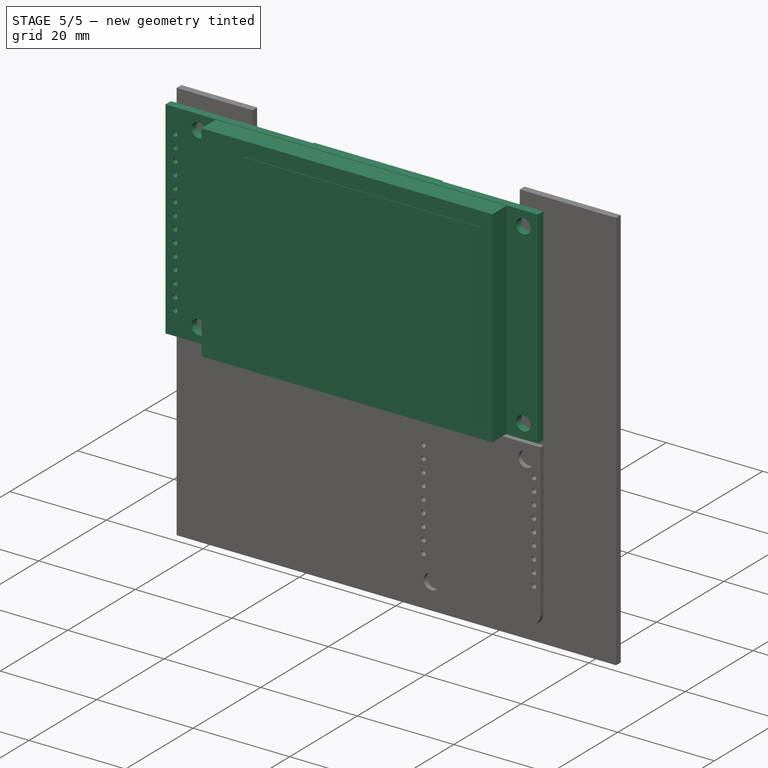
[diagram: stage 5 of 5 — iso view after this stage's code; geometry added in this stage tinted green]
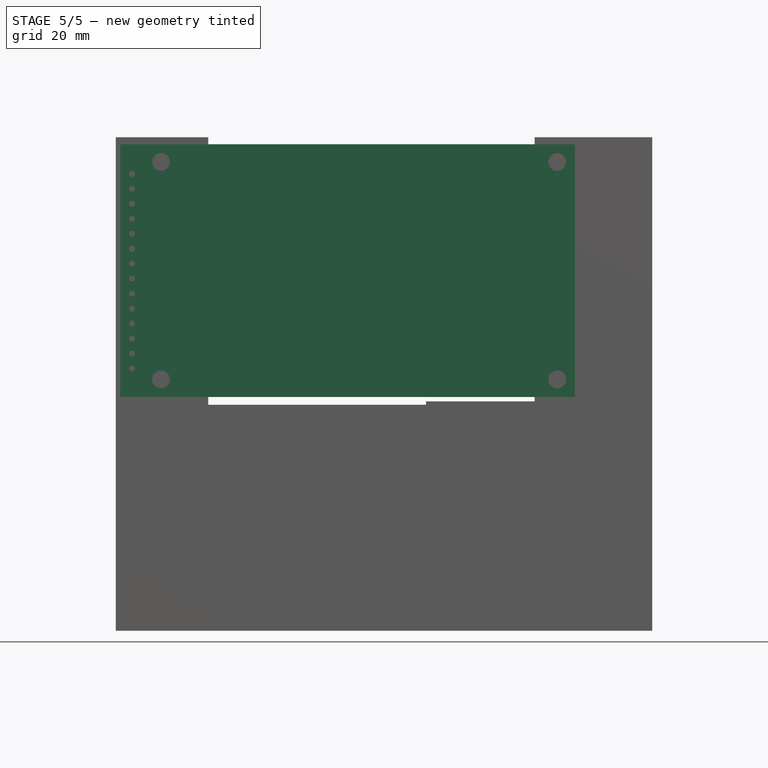
[diagram: stage 5 of 5 — front view after this stage's code; geometry added in this stage tinted green]
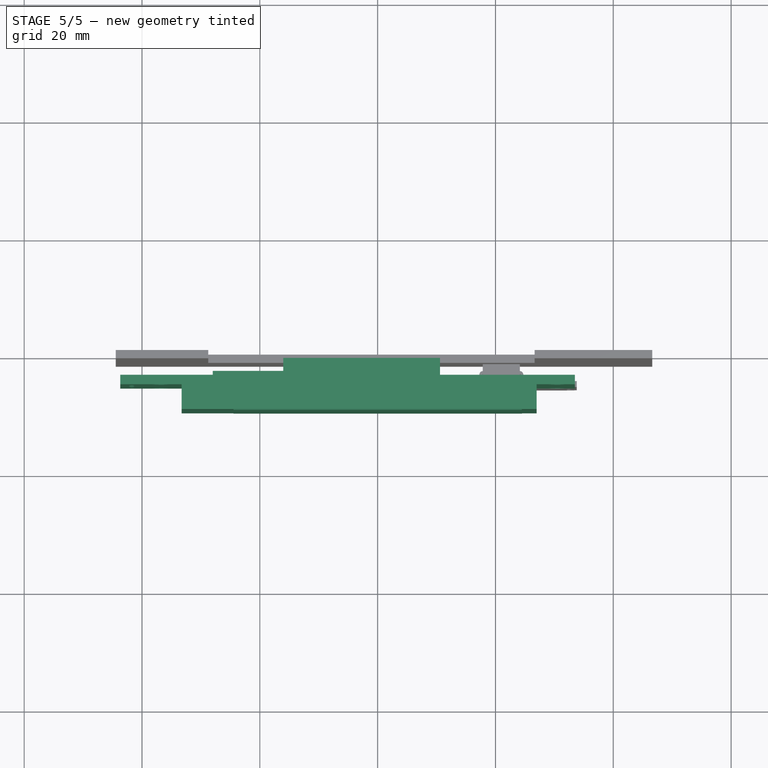
[diagram: stage 5 of 5 — top view after this stage's code; geometry added in this stage tinted green]
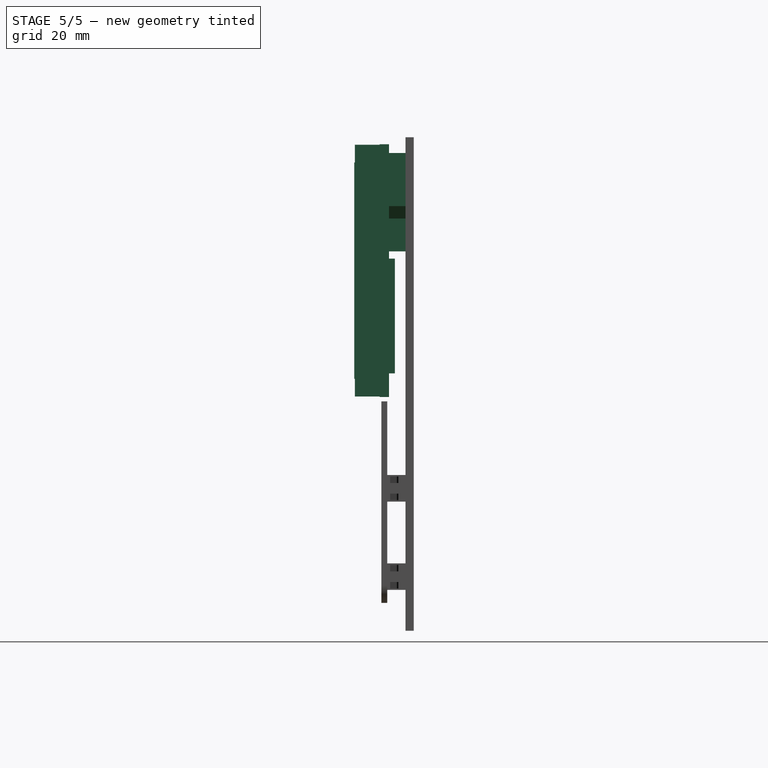
[diagram: stage 5 of 5 — right view after this stage's code; geometry added in this stage tinted green]
FEATURE [Sketcher::SketchObject] Sketch  label="gl base"
  FullyConstrained = true
  MapMode = 5
  Placement = pos=(0,0,0) rot=(1,0,0;1.5708rad)
  Support = -> [XZ_Plane]
  sketch-geometry (8):
    g0: LineSegment StartX=-33.28 StartY=21.36 StartZ=0 EndX=26.98 EndY=21.36 EndZ=0
    g1: LineSegment StartX=26.98 StartY=21.36 StartZ=0 EndX=26.98 EndY=-21.36 EndZ=0
    g2: LineSegment StartX=26.98 StartY=-21.36 StartZ=0 EndX=-33.28 EndY=-21.36 EndZ=0
    g3: LineSegment StartX=-33.28 StartY=-21.36 StartZ=0 EndX=-33.28 EndY=21.36 EndZ=0
    g4: LineSegment StartX=-24.48 StartY=18.36 StartZ=0 EndX=24.48 EndY=18.36 EndZ=0
    g5: LineSegment StartX=24.48 StartY=18.36 StartZ=0 EndX=24.48 EndY=-18.36 EndZ=0
    g6: LineSegment StartX=24.48 StartY=-18.36 StartZ=0 EndX=-24.48 EndY=-18.36 EndZ=0
    g7: LineSegment StartX=-24.48 StartY=-18.36 StartZ=0 EndX=-24.48 EndY=18.36 EndZ=0
  constraints (21):
    c: Coincident(g0,g1)
    c: Coincident(g1,g2)
    c: Coincident(g2,g3)
    c: Coincident(g3,g0)
    c: Horizontal(g2)
    c: Vertical(g3)
    c: DistanceX(g0,g0) = 60.26
    c: DistanceY(g1,g1) = 42.72
    c: Coincident(g4,g5)
    c: Coincident(g5,g6)
    c: Coincident(g6,g7)
    c: Coincident(g7,g4)
    c: Horizontal(g6)
    c: Vertical(g7)
    c: Horizontal(g0)
    c: Symmetric(g4,g4,g-2)
    c: Symmetric(g4,g5,g-1)
    c: DistanceX(g4,g4) = 48.96
    c: DistanceX(g4,g0) = 2.5
    c: DistanceY(g5,g5) = 36.72
    c: Symmetric(g0,g1,g-1)
FEATURE [PartDesign::Pad] Pad  label="GL Base"
  Direction = (1,1,1)
  Length = 4.2
  Length2 = 100
  Placement = pos=(0,0,0) rot=(1,0,0;1.5708rad)
  Profile = -> Sketch
  Reversed = true
  Type = 0
FEATURE [Sketcher::SketchObject] Sketch001  label="gl active area"
  FullyConstrained = true
  MapMode = 5
  Placement = pos=(0,0,0) rot=(1,0,0;1.5708rad)
  Support = -> [XZ_Plane]
  sketch-geometry (4):
    g0: LineSegment StartX=-24.48 StartY=18.36 StartZ=0 EndX=24.48 EndY=18.36 EndZ=0
    g1: LineSegment StartX=24.48 StartY=18.36 StartZ=0 EndX=24.48 EndY=-18.36 EndZ=0
    g2: LineSegment StartX=24.48 StartY=-18.36 StartZ=0 EndX=-24.48 EndY=-18.36 EndZ=0
    g3: LineSegment StartX=-24.48 StartY=-18.36 StartZ=0 EndX=-24.48 EndY=18.36 EndZ=0
  constraints (10):
    c: Coincident(g0,g1)
    c: Coincident(g1,g2)
    c: Coincident(g2,g3)
    c: Coincident(g3,g0)
    c: Horizontal(g2)
    c: Vertical(g3)
    c: Symmetric(g0,g0,g-2)
    c: Symmetric(g0,g1,g-1)
    c: DistanceY(g1,g1) = 36.72
    c: DistanceX(g0,g0) = 48.96
FEATURE [PartDesign::Pad] Pad001  label="GL active area"
  BaseFeature = -> Pad
  Direction = (1,1,1)
  Length = 0.1
  Length2 = 100
  Placement = pos=(0,0,0) rot=(1,0,0;1.5708rad)
  Profile = -> Sketch001
  Type = 0
FEATURE [Sketcher::SketchObject] Sketch004  label="pc hole"
  ExternalGeometry = -> [Sketch002]
  FullyConstrained = true
  MapMode = 5
  Placement = pos=(0,0,0) rot=(1,0,0;1.5708rad)
  Support = -> [XZ_Plane001]
  sketch-geometry (1):
    g0: Circle CenterX=-41.69 CenterY=-16.6 CenterZ=0 NormalX=0 NormalY=0 NormalZ=1 AngleXU=0 Radius=0.5
  constraints (3):
    c: DistanceX(g-3,g0) = 2
    c: DistanceY(g-3,g0) = 4.85
    c: Radius(g0) = 0.5
FEATURE [PartDesign::Pocket] Pocket  label="PC FirstHole"
  BaseFeature = -> Pad002
  Direction = (1,1,1)
  Length = 5
  Length2 = 100
  Midplane = true
  Placement = pos=(0,0,0) rot=(1,0,0;1.5708rad)
  Profile = -> Sketch004
  Type = 1
FEATURE [PartDesign::LinearPattern] LinearPattern  label="PC OtherHoles"
  BaseFeature = -> Pocket
  Direction = -> Z_Axis001
  Length = 33.02
  Occurrences = 14
  Originals = -> [Pocket]
  Placement = pos=(0,0,0) rot=(1,0,0;1.5708rad)
FEATURE [PartDesign::Body] Body003  label="Components"
  Group = -> [Sketch009,Sketch010,Pad004]
  Origin = -> Origin003
  Tip = -> Pad004
FEATURE [Part::Compound] Compound  label="Display"
  Links = -> [Body,Body001,Body002,Body003]
  Placement = pos=(0,-10,0) rot=(0,0,1;0rad)
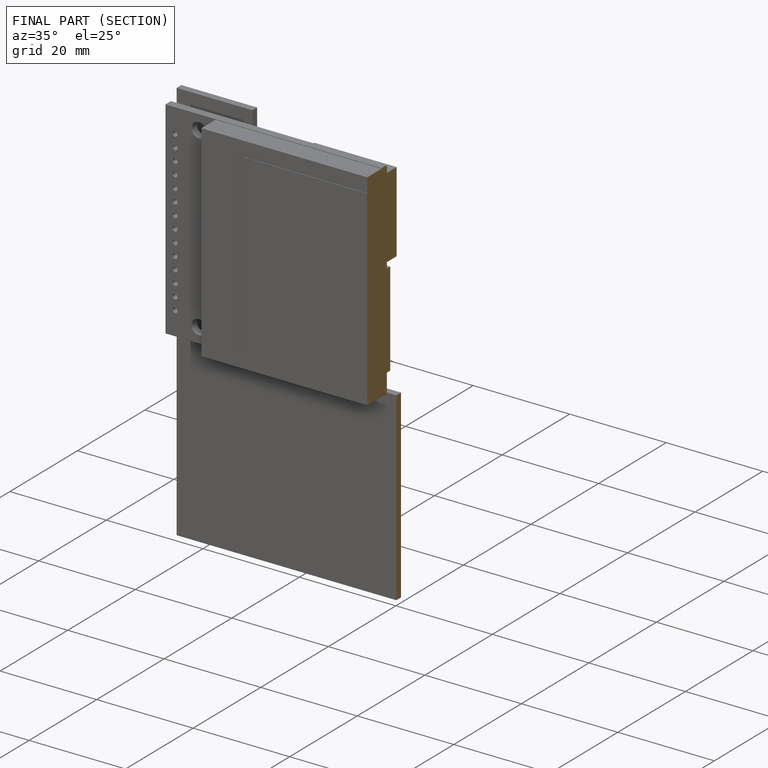
[diagram: finished part — half-section view (interior)]
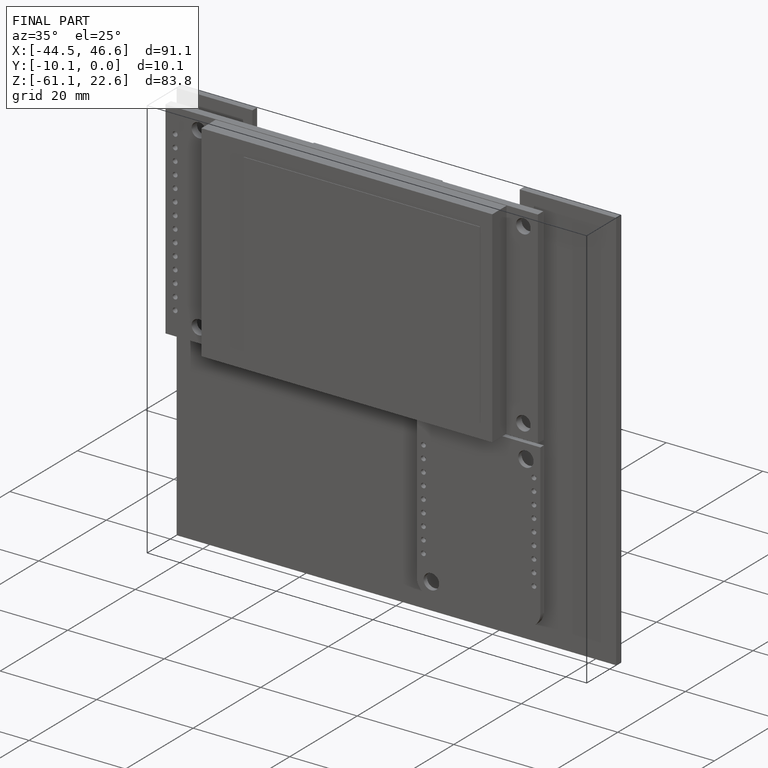
[diagram: finished part — iso view with bounding-box wireframe]
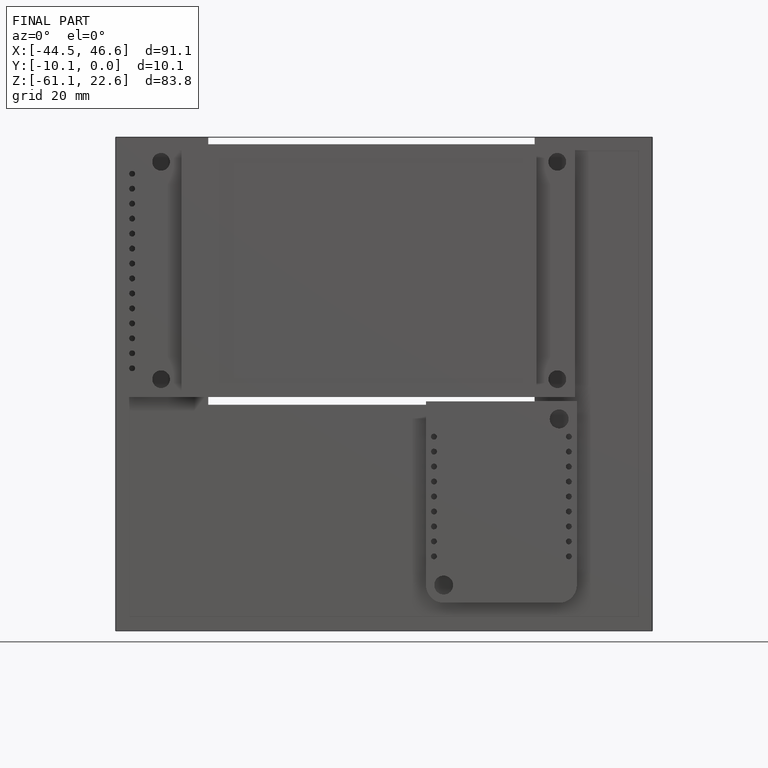
[diagram: finished part — front view with bounding-box wireframe]
